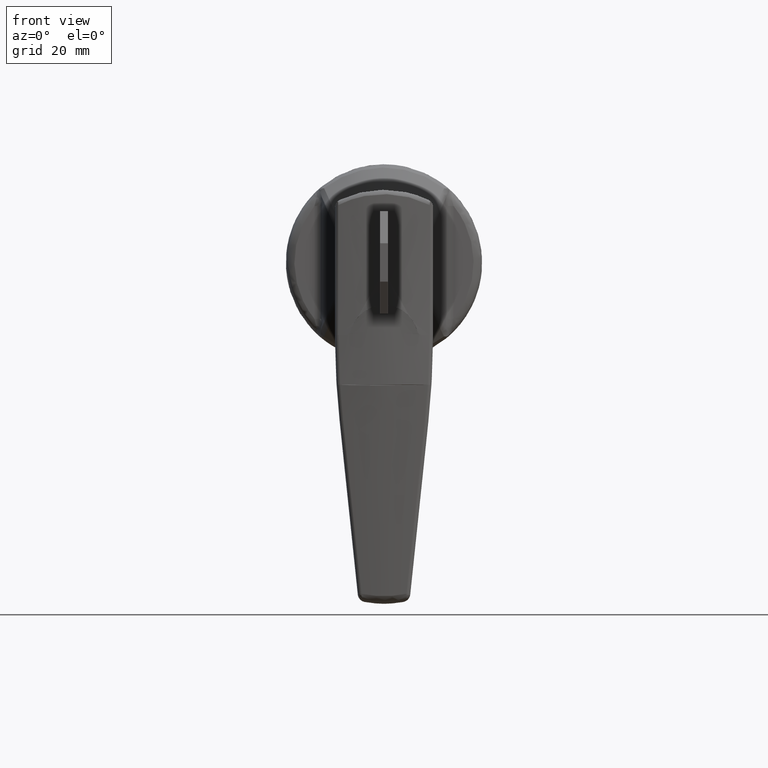
[diagram: clean part render]
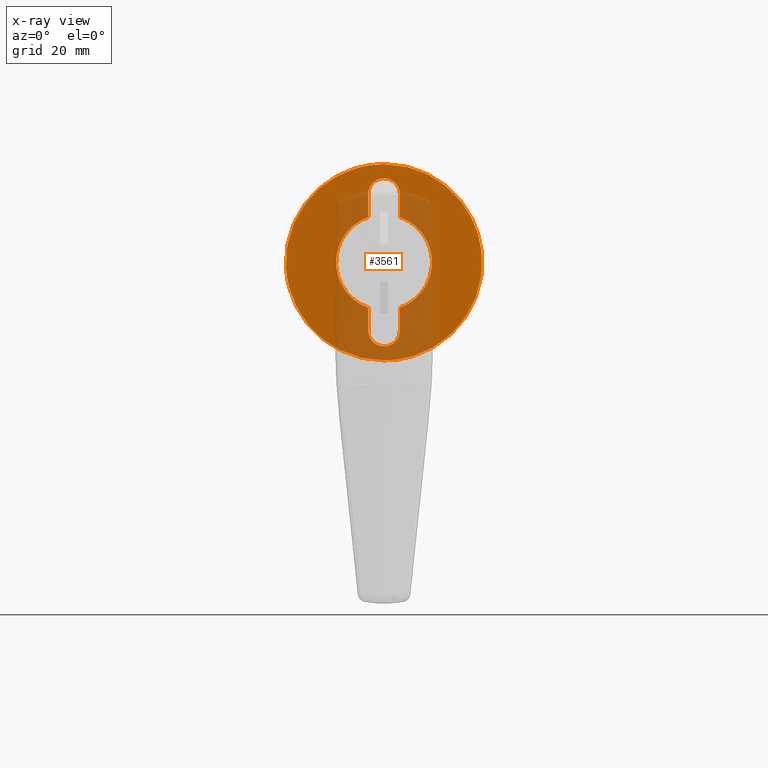
[diagram: x-ray — body ghosted, one internal face saturated and labeled with its STEP entity id]
A machine part, front view, then the same camera in x-ray: the body is ghosted and one INTERNAL B-rep face — a face not visible from any outside direction — is saturated and labeled: STEP entity #3561.
In plain terms, the highlighted face is a freeform B-spline surface patch.
Its self-contained STEP definition (entity closure, byte-faithful):
#3197=CARTESIAN_POINT('',(-0.999999999999779,-22.839218676945340,2.714787397271932));
#3198=VERTEX_POINT('',#3197);
#3204=CARTESIAN_POINT('',(-0.999999999999779,0.000000429399194,-23.0));
#3205=VERTEX_POINT('',#3204);
#3206=CARTESIAN_POINT('',(-0.999999999999779,-22.839218676945347,2.714787397271932));
#3207=CARTESIAN_POINT('',(-0.999999999999779,-22.999999570600806,1.362154752162179));
#3208=CARTESIAN_POINT('',(-0.999999999999779,-22.999999570600810,2.629225E-023));
#3209=CARTESIAN_POINT('',(-0.999999999999779,-22.999999570600803,-22.999999999999993));
#3210=CARTESIAN_POINT('',(-0.999999999999779,0.000000429399194,-23.0));
#3218=(BOUNDED_CURVE()B_SPLINE_CURVE(2,(#3206,#3207,#3208,#3209,#3210),.UNSPECIFIED.,.F.,.U.)B_SPLINE_CURVE_WITH_KNOTS((3,2,3),(0.229562473513180,0.250000000000000,0.500000000000000),.UNSPECIFIED.)CURVE()GEOMETRIC_REPRESENTATION_ITEM()RATIONAL_B_SPLINE_CURVE((0.956026754183056,0.976055948330761,1.0,0.707106781186548,1.0))REPRESENTATION_ITEM(''));
#3219=EDGE_CURVE('',#3198,#3205,#3218,.T.);
#3221=CARTESIAN_POINT('',(-0.999999999999779,22.957100793088031,-1.404116409532238));
#3222=VERTEX_POINT('',#3221);
#3223=CARTESIAN_POINT('',(-0.999999999999779,0.000000429399194,-23.0));
#3224=CARTESIAN_POINT('',(-0.999999999999779,21.636239967794861,-22.999999999999996));
#3225=CARTESIAN_POINT('',(-0.999999999999779,22.957100793088028,-1.404116409532238));
#3233=(BOUNDED_CURVE()B_SPLINE_CURVE(2,(#3223,#3224,#3225),.UNSPECIFIED.,.F.,.U.)B_SPLINE_CURVE_WITH_KNOTS((3,3),(0.500000000000000,0.739332962238503),.UNSPECIFIED.)CURVE()GEOMETRIC_REPRESENTATION_ITEM()RATIONAL_B_SPLINE_CURVE((1.0,0.719603993287225,0.976072041665775))REPRESENTATION_ITEM(''));
#3234=EDGE_CURVE('',#3205,#3222,#3233,.T.);
#3308=CARTESIAN_POINT('',(-0.999999999999779,0.000000429399194,23.0));
#3309=VERTEX_POINT('',#3308);
#3310=CARTESIAN_POINT('',(-0.999999999999779,22.957100793088028,-1.404116409532237));
#3311=CARTESIAN_POINT('',(-0.999999999999779,23.000000429399197,-0.702713556098719));
#3312=CARTESIAN_POINT('',(-0.999999999999779,23.000000429399190,2.629225E-023));
#3313=CARTESIAN_POINT('',(-0.999999999999779,23.000000429399197,22.999999999999993));
#3314=CARTESIAN_POINT('',(-0.999999999999779,0.000000429399194,23.0));
#3322=(BOUNDED_CURVE()B_SPLINE_CURVE(2,(#3310,#3311,#3312,#3313,#3314),.UNSPECIFIED.,.F.,.U.)B_SPLINE_CURVE_WITH_KNOTS((3,2,3),(0.739332962238503,0.750000000000000,1.0),.UNSPECIFIED.)CURVE()GEOMETRIC_REPRESENTATION_ITEM()RATIONAL_B_SPLINE_CURVE((0.976072041665775,0.987502787899322,1.0,0.707106781186548,1.0))REPRESENTATION_ITEM(''));
#3323=EDGE_CURVE('',#3222,#3309,#3322,.T.);
#3325=CARTESIAN_POINT('',(-0.999999999999779,0.000000429399194,23.0));
#3326=CARTESIAN_POINT('',(-0.999999999999779,-20.428013667182331,23.000000000000004));
#3327=CARTESIAN_POINT('',(-0.999999999999779,-22.839218676945340,2.714787397271932));
#3335=(BOUNDED_CURVE()B_SPLINE_CURVE(2,(#3325,#3326,#3327),.UNSPECIFIED.,.F.,.U.)B_SPLINE_CURVE_WITH_KNOTS((3,3),(0.0,0.229562473513180),.UNSPECIFIED.)CURVE()GEOMETRIC_REPRESENTATION_ITEM()RATIONAL_B_SPLINE_CURVE((1.0,0.731050832855787,0.956026754183056))REPRESENTATION_ITEM(''));
#3336=EDGE_CURVE('',#3309,#3198,#3335,.T.);
#3452=CARTESIAN_POINT('',(-0.999999999999801,-25.297281591287302,25.297699910843079));
#3453=CARTESIAN_POINT('',(-0.999999999999801,25.297140561228801,25.297699910843079));
#3454=CARTESIAN_POINT('',(-0.999999999999801,-25.297281591287302,-25.297701144659221));
#3455=CARTESIAN_POINT('',(-0.999999999999801,25.297140561228801,-25.297701144659221));
#3456=B_SPLINE_SURFACE_WITH_KNOTS('',1,1,((#3452,#3454),(#3453,#3455)),.UNSPECIFIED.,.F.,.F.,.U.,(2,2),(2,2),(0.0,50.594422152516103),(0.0,50.595401055502293),.UNSPECIFIED.);
#3457=ORIENTED_EDGE('',*,*,#3323,.F.);
#3458=ORIENTED_EDGE('',*,*,#3234,.F.);
#3459=ORIENTED_EDGE('',*,*,#3219,.F.);
#3460=ORIENTED_EDGE('',*,*,#3336,.F.);
#3461=EDGE_LOOP('',(#3457,#3458,#3459,#3460));
#3462=FACE_OUTER_BOUND('',#3461,.T.);
#3463=CARTESIAN_POINT('',(-0.999999999999779,-3.700000000000000,10.624146776671321));
#3464=VERTEX_POINT('',#3463);
#3465=CARTESIAN_POINT('',(-0.999999999999779,-3.700000000000000,-10.624146776671321));
#3466=VERTEX_POINT('',#3465);
#3467=CARTESIAN_POINT('',(-0.999999999999779,-3.700000000000006,10.624146776671330));
#3468=CARTESIAN_POINT('',(-0.999999999999779,-11.249999942056769,7.994759238926758));
#3469=CARTESIAN_POINT('',(-0.999999999999779,-11.250000000000000,-0.000000166377668));
#3470=CARTESIAN_POINT('',(-0.999999999999779,-11.250000057943227,-7.994759571682097));
#3471=CARTESIAN_POINT('',(-0.999999999999779,-3.700000000000000,-10.624146776671321));
#3479=(BOUNDED_CURVE()B_SPLINE_CURVE(2,(#3467,#3468,#3469,#3470,#3471),.UNSPECIFIED.,.F.,.U.)B_SPLINE_CURVE_WITH_KNOTS((3,2,3),(0.0,0.500000000000000,1.0),.UNSPECIFIED.)CURVE()GEOMETRIC_REPRESENTATION_ITEM()RATIONAL_B_SPLINE_CURVE((1.0,0.815134619475012,1.0,0.815134619475012,1.0))REPRESENTATION_ITEM(''));
#3480=EDGE_CURVE('',#3464,#3466,#3479,.T.);
#3481=ORIENTED_EDGE('',*,*,#3480,.T.);
#3482=CARTESIAN_POINT('',(-0.999999999999779,-3.700000000000000,-16.0));
#3483=VERTEX_POINT('',#3482);
#3484=CARTESIAN_POINT('',(-0.999999999999779,-3.700000000000000,-10.624146776671321));
#3485=CARTESIAN_POINT('',(-0.999999999999779,-3.700000000000000,-16.0));
#3486=QUASI_UNIFORM_CURVE('',1,(#3484,#3485),.UNSPECIFIED.,.F.,.U.);
#3487=EDGE_CURVE('',#3466,#3483,#3486,.T.);
#3488=ORIENTED_EDGE('',*,*,#3487,.T.);
#3489=CARTESIAN_POINT('',(-0.999999999999779,3.700000000000000,-16.0));
#3490=VERTEX_POINT('',#3489);
#3491=CARTESIAN_POINT('',(-0.999999999999779,-3.699999999999999,-16.0));
#3492=CARTESIAN_POINT('',(-0.999999999999779,-3.699999999999999,-19.700000000000006));
#3493=CARTESIAN_POINT('',(-0.999999999999779,7.905216E-016,-19.699999999999999));
#3494=CARTESIAN_POINT('',(-0.999999999999779,3.700000000000001,-19.700000000000006));
#3495=CARTESIAN_POINT('',(-0.999999999999779,3.700000000000001,-16.0));
#3503=(BOUNDED_CURVE()B_SPLINE_CURVE(2,(#3491,#3492,#3493,#3494,#3495),.UNSPECIFIED.,.F.,.U.)B_SPLINE_CURVE_WITH_KNOTS((3,2,3),(0.0,0.500000000000000,1.0),.UNSPECIFIED.)CURVE()GEOMETRIC_REPRESENTATION_ITEM()RATIONAL_B_SPLINE_CURVE((1.0,0.707106781186548,1.0,0.707106781186548,1.0))REPRESENTATION_ITEM(''));
#3504=EDGE_CURVE('',#3483,#3490,#3503,.T.);
#3505=ORIENTED_EDGE('',*,*,#3504,.T.);
#3506=CARTESIAN_POINT('',(-0.999999999999779,3.700000000000000,-10.624146776671321));
#3507=VERTEX_POINT('',#3506);
#3508=CARTESIAN_POINT('',(-0.999999999999779,3.700000000000000,-16.0));
#3509=CARTESIAN_POINT('',(-0.999999999999779,3.700000000000000,-10.624146776671321));
#3510=QUASI_UNIFORM_CURVE('',1,(#3508,#3509),.UNSPECIFIED.,.F.,.U.);
#3511=EDGE_CURVE('',#3490,#3507,#3510,.T.);
#3512=ORIENTED_EDGE('',*,*,#3511,.T.);
#3513=CARTESIAN_POINT('',(-0.999999999999779,3.700000000000000,10.624146776671321));
#3514=VERTEX_POINT('',#3513);
#3515=CARTESIAN_POINT('',(-0.999999999999779,3.700000000000000,-10.624146776671321));
#3516=CARTESIAN_POINT('',(-0.999999999999779,11.250000057943224,-7.994759571682098));
#3517=CARTESIAN_POINT('',(-0.999999999999779,11.250000000000000,-0.000000166377671));
#3518=CARTESIAN_POINT('',(-0.999999999999779,11.249999942056773,7.994759238926755));
#3519=CARTESIAN_POINT('',(-0.999999999999779,3.700000000000009,10.624146776671330));
#3527=(BOUNDED_CURVE()B_SPLINE_CURVE(2,(#3515,#3516,#3517,#3518,#3519),.UNSPECIFIED.,.F.,.U.)B_SPLINE_CURVE_WITH_KNOTS((3,2,3),(0.0,0.500000000000000,1.0),.UNSPECIFIED.)CURVE()GEOMETRIC_REPRESENTATION_ITEM()RATIONAL_B_SPLINE_CURVE((1.0,0.815134619475012,1.0,0.815134619475012,1.0))REPRESENTATION_ITEM(''));
#3528=EDGE_CURVE('',#3507,#3514,#3527,.T.);
#3529=ORIENTED_EDGE('',*,*,#3528,.T.);
#3530=CARTESIAN_POINT('',(-0.999999999999779,3.700000000000000,16.0));
#3531=VERTEX_POINT('',#3530);
#3532=CARTESIAN_POINT('',(-0.999999999999779,3.700000000000000,10.624146776671321));
#3533=CARTESIAN_POINT('',(-0.999999999999779,3.700000000000000,16.0));
#3534=QUASI_UNIFORM_CURVE('',1,(#3532,#3533),.UNSPECIFIED.,.F.,.U.);
#3535=EDGE_CURVE('',#3514,#3531,#3534,.T.);
#3536=ORIENTED_EDGE('',*,*,#3535,.T.);
#3537=CARTESIAN_POINT('',(-0.999999999999779,-3.700000000000000,16.0));
#3538=VERTEX_POINT('',#3537);
#3539=CARTESIAN_POINT('',(-0.999999999999779,3.699999999999999,16.0));
#3540=CARTESIAN_POINT('',(-0.999999999999779,3.699999999999999,19.700000000000006));
#3541=CARTESIAN_POINT('',(-0.999999999999779,-7.905216E-016,19.699999999999999));
#3542=CARTESIAN_POINT('',(-0.999999999999779,-3.700000000000001,19.700000000000006));
#3543=CARTESIAN_POINT('',(-0.999999999999779,-3.700000000000001,16.0));
#3551=(BOUNDED_CURVE()B_SPLINE_CURVE(2,(#3539,#3540,#3541,#3542,#3543),.UNSPECIFIED.,.F.,.U.)B_SPLINE_CURVE_WITH_KNOTS((3,2,3),(0.0,0.500000000000000,1.0),.UNSPECIFIED.)CURVE()GEOMETRIC_REPRESENTATION_ITEM()RATIONAL_B_SPLINE_CURVE((1.0,0.707106781186548,1.0,0.707106781186548,1.0))REPRESENTATION_ITEM(''));
#3552=EDGE_CURVE('',#3531,#3538,#3551,.T.);
#3553=ORIENTED_EDGE('',*,*,#3552,.T.);
#3554=CARTESIAN_POINT('',(-0.999999999999779,-3.700000000000000,16.0));
#3555=CARTESIAN_POINT('',(-0.999999999999779,-3.700000000000000,10.624146776671321));
#3556=QUASI_UNIFORM_CURVE('',1,(#3554,#3555),.UNSPECIFIED.,.F.,.U.);
#3557=EDGE_CURVE('',#3538,#3464,#3556,.T.);
#3558=ORIENTED_EDGE('',*,*,#3557,.T.);
#3559=EDGE_LOOP('',(#3481,#3488,#3505,#3512,#3529,#3536,#3553,#3558));
#3560=FACE_BOUND('',#3559,.T.);
#3561=ADVANCED_FACE('',(#3462,#3560),#3456,.T.);